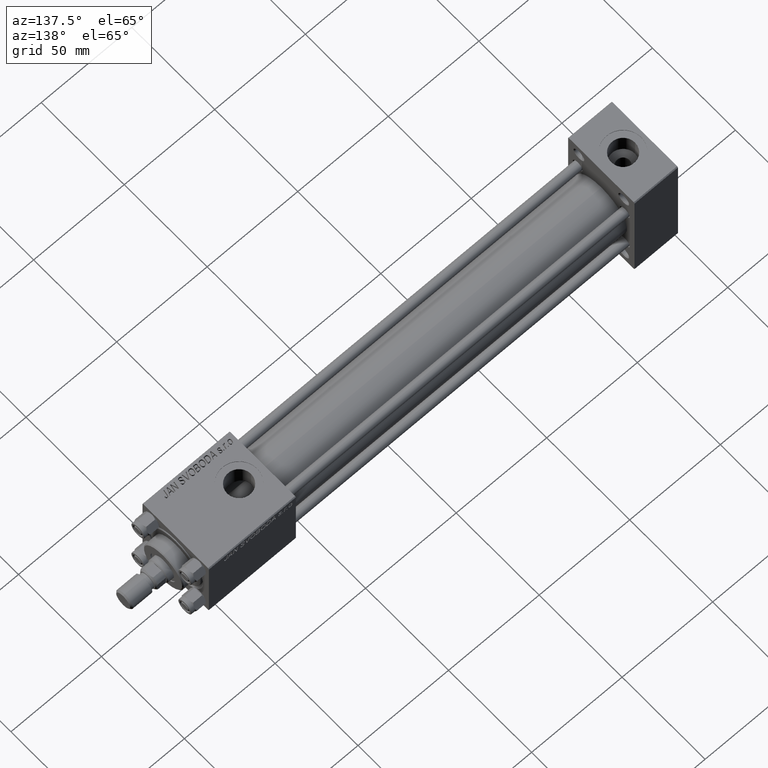
[diagram: clean part render]
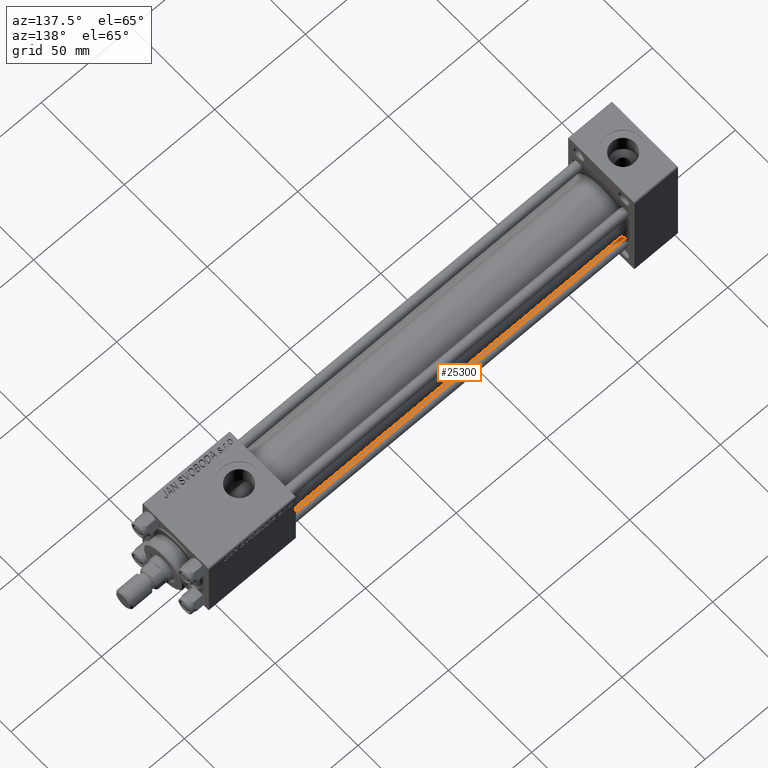
[diagram: same view with one face highlighted and labeled with its STEP entity id]
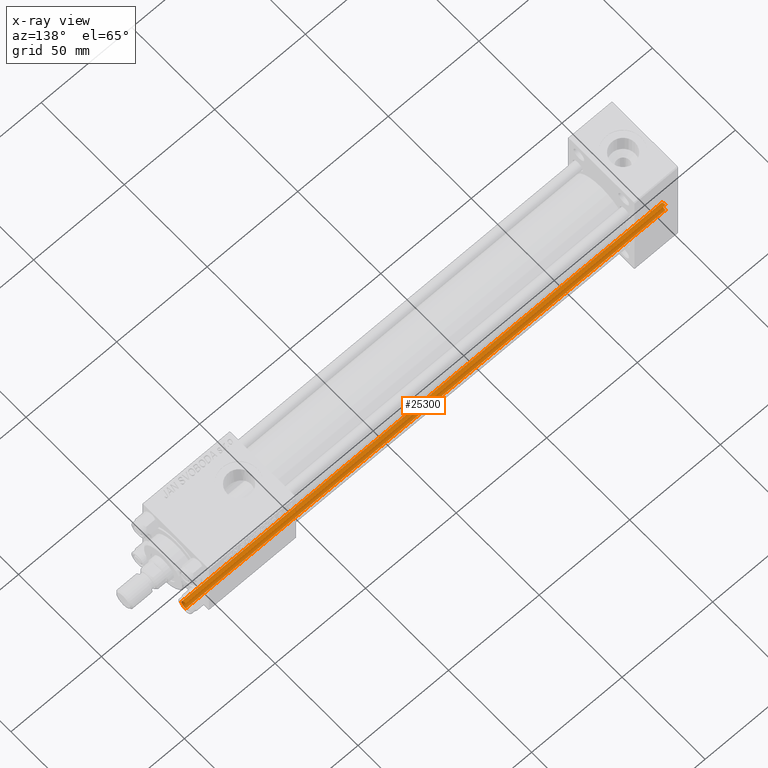
[diagram: x-ray of the same camera — body ghosted, the highlighted face saturated]
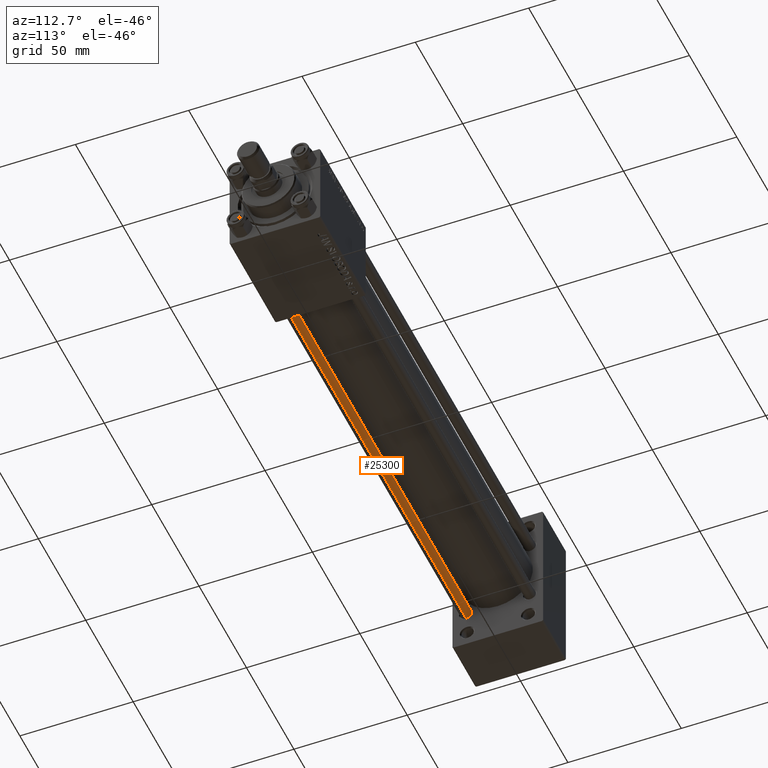
[diagram: same view with one face highlighted and labeled with its STEP entity id]
A machine part, auxiliary view. The second image highlights one B-rep face of the part: STEP entity #25300.
The next image is the same camera in x-ray: the body ghosted, the highlighted face saturated — about 0% of this face is hidden behind the body in this view.
A second angle (auxiliary view) of the same face is appended — the face is thin or edge-on in the first view.
In plain terms, the highlighted cylindrical surface (edge-blend (fillet) strip) has radius 2.5 mm, axis along (-1, 0, 0).
Its self-contained STEP definition (entity closure, byte-faithful):
#322 = CIRCLE ( 'NONE', #45874, 2.500000000000000000 ) ;
#428 = LINE ( 'NONE', #11626, #24619 ) ;
#2008 = VERTEX_POINT ( 'NONE', #48631 ) ;
#6285 = DIRECTION ( 'NONE',  ( -0.000000000000000000, -0.000000000000000000, 1.000000000000000000 ) ) ;
#6831 = CARTESIAN_POINT ( 'NONE',  ( 0.000000000000000000, 0.000000000000000000, 265.5000000000000568 ) ) ;
#8814 = EDGE_CURVE ( 'NONE', #16694, #22646, #24337, .T. ) ;
#11626 = CARTESIAN_POINT ( 'NONE',  ( 2.500000000000000000, 3.061616997868383141E-16, 266.0000000000000000 ) ) ;
#11936 = EDGE_CURVE ( 'NONE', #39585, #2008, #428, .T. ) ;
#12484 = CIRCLE ( 'NONE', #27087, 2.500000000000000000 ) ;
#14796 = FACE_OUTER_BOUND ( 'NONE', #30850, .T. ) ;
#16694 = VERTEX_POINT ( 'NONE', #41906 ) ;
#18286 = DIRECTION ( 'NONE',  ( 0.000000000000000000, 0.000000000000000000, -1.000000000000000000 ) ) ;
#19739 = EDGE_CURVE ( 'NONE', #2008, #22646, #322, .T. ) ;
#22358 = DIRECTION ( 'NONE',  ( 1.000000000000000000, 0.000000000000000000, 0.000000000000000000 ) ) ;
#22558 = DIRECTION ( 'NONE',  ( 1.000000000000000000, 0.000000000000000000, 0.000000000000000000 ) ) ;
#22646 = VERTEX_POINT ( 'NONE', #41427 ) ;
#24337 = LINE ( 'NONE', #28910, #38208 ) ;
#24555 = ORIENTED_EDGE ( 'NONE', *, *, #11936, .T. ) ;
#24619 = VECTOR ( 'NONE', #47046, 1000.000000000000000 ) ;
#25300 = ADVANCED_FACE ( 'NONE', ( #14796 ), #49956, .T. ) ;
#27087 = AXIS2_PLACEMENT_3D ( 'NONE', #6831, #18286, #22358 ) ;
#28910 = CARTESIAN_POINT ( 'NONE',  ( -2.500000000000000000, 0.000000000000000000, 266.0000000000000000 ) ) ;
#30321 = CARTESIAN_POINT ( 'NONE',  ( 0.000000000000000000, 0.000000000000000000, 266.0000000000000000 ) ) ;
#30850 = EDGE_LOOP ( 'NONE', ( #40613, #24555, #41356, #39894 ) ) ;
#38208 = VECTOR ( 'NONE', #39886, 1000.000000000000000 ) ;
#39585 = VERTEX_POINT ( 'NONE', #48040 ) ;
#39886 = DIRECTION ( 'NONE',  ( -0.000000000000000000, -0.000000000000000000, -1.000000000000000000 ) ) ;
#39894 = ORIENTED_EDGE ( 'NONE', *, *, #8814, .F. ) ;
#40613 = ORIENTED_EDGE ( 'NONE', *, *, #44730, .T. ) ;
#41356 = ORIENTED_EDGE ( 'NONE', *, *, #19739, .T. ) ;
#41427 = CARTESIAN_POINT ( 'NONE',  ( -2.500000000000000000, 0.000000000000000000, 0.5000000000000559552 ) ) ;
#41906 = CARTESIAN_POINT ( 'NONE',  ( -2.500000000000000000, 0.000000000000000000, 265.5000000000000568 ) ) ;
#42311 = DIRECTION ( 'NONE',  ( -0.000000000000000000, -0.000000000000000000, -1.000000000000000000 ) ) ;
#44730 = EDGE_CURVE ( 'NONE', #16694, #39585, #12484, .T. ) ;
#45874 = AXIS2_PLACEMENT_3D ( 'NONE', #49080, #6285, #22558 ) ;
#47046 = DIRECTION ( 'NONE',  ( -0.000000000000000000, -0.000000000000000000, -1.000000000000000000 ) ) ;
#48040 = CARTESIAN_POINT ( 'NONE',  ( 2.500000000000000000, 3.061616997868383141E-16, 265.5000000000000568 ) ) ;
#48631 = CARTESIAN_POINT ( 'NONE',  ( 2.500000000000000000, 3.061616997868383141E-16, 0.5000000000000559552 ) ) ;
#49080 = CARTESIAN_POINT ( 'NONE',  ( 0.000000000000000000, 0.000000000000000000, 0.5000000000000559552 ) ) ;
#49337 = AXIS2_PLACEMENT_3D ( 'NONE', #30321, #42311, #50210 ) ;
#49956 = CYLINDRICAL_SURFACE ( 'NONE', #49337, 2.500000000000000000 ) ;
#50210 = DIRECTION ( 'NONE',  ( -1.000000000000000000, 0.000000000000000000, 0.000000000000000000 ) ) ;